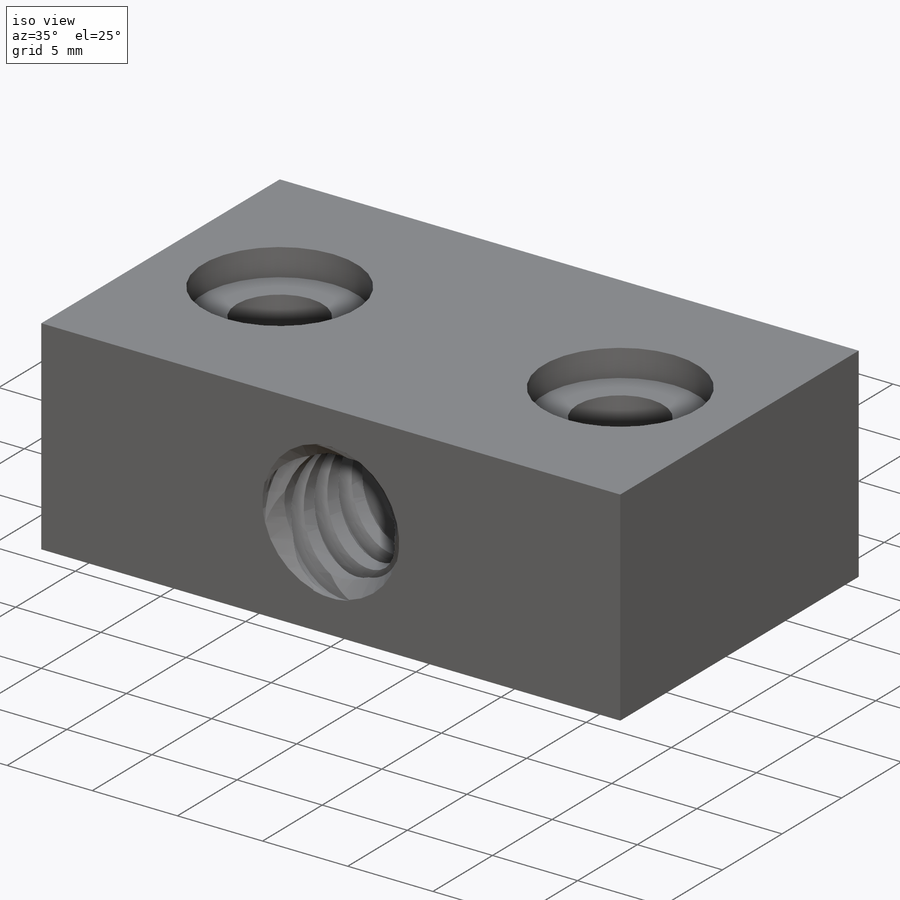
[diagram: iso view]
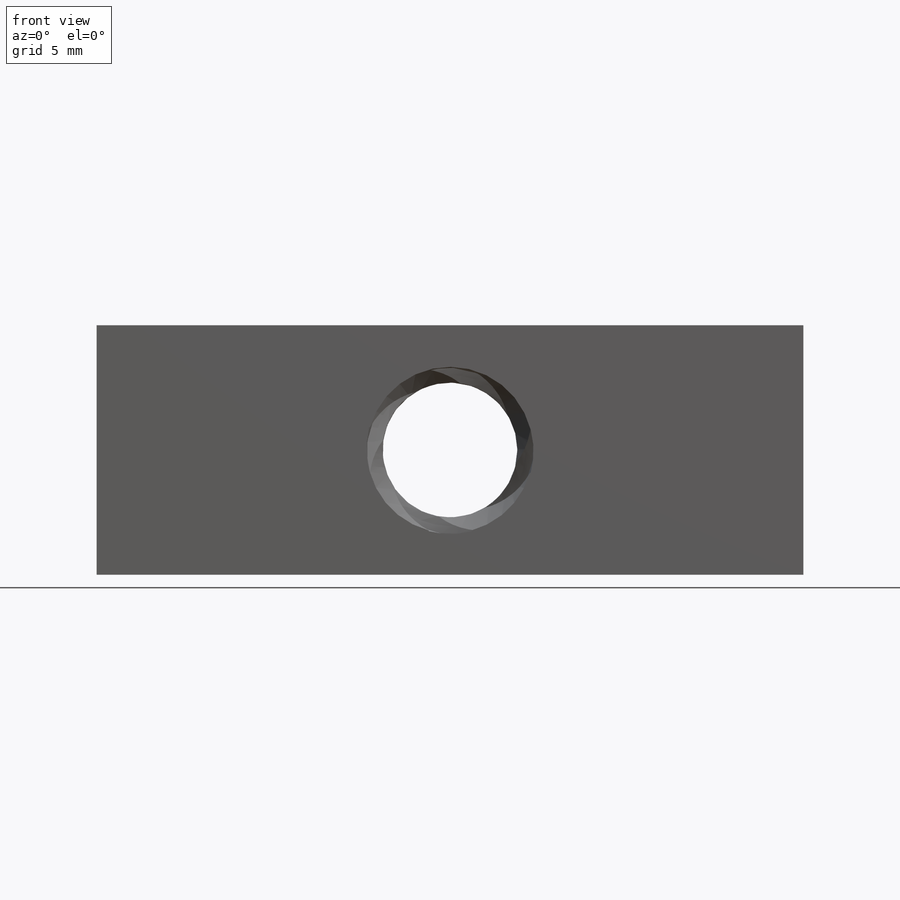
[diagram: front view]
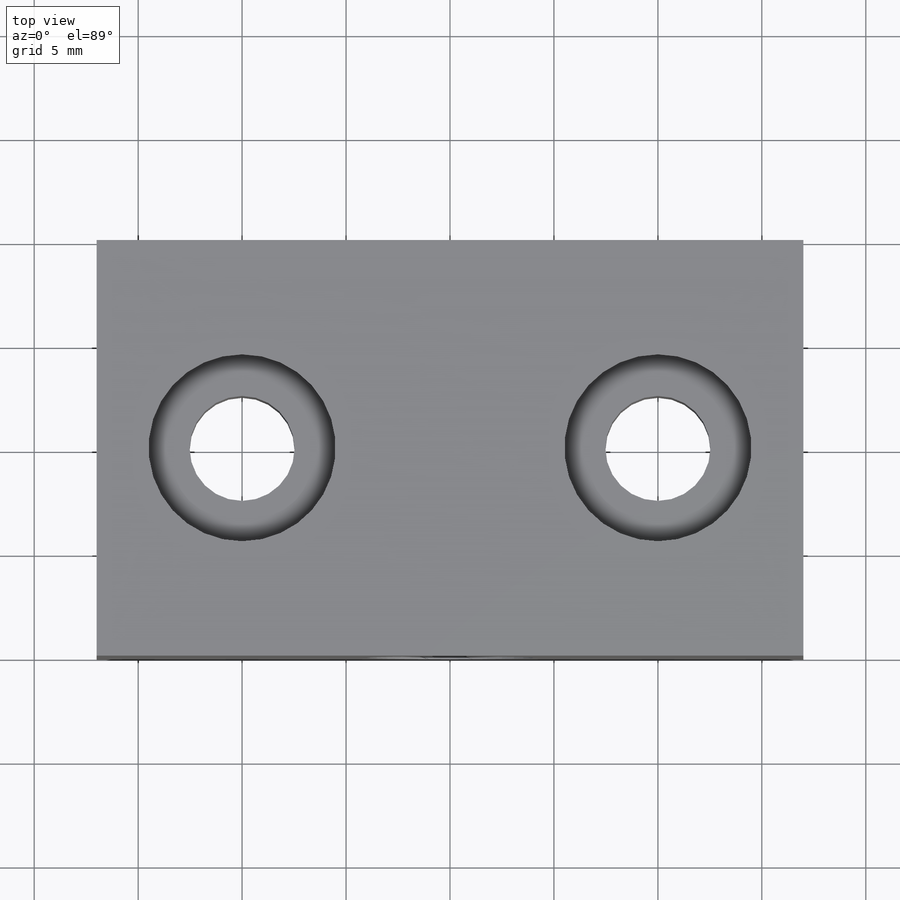
[diagram: top view]
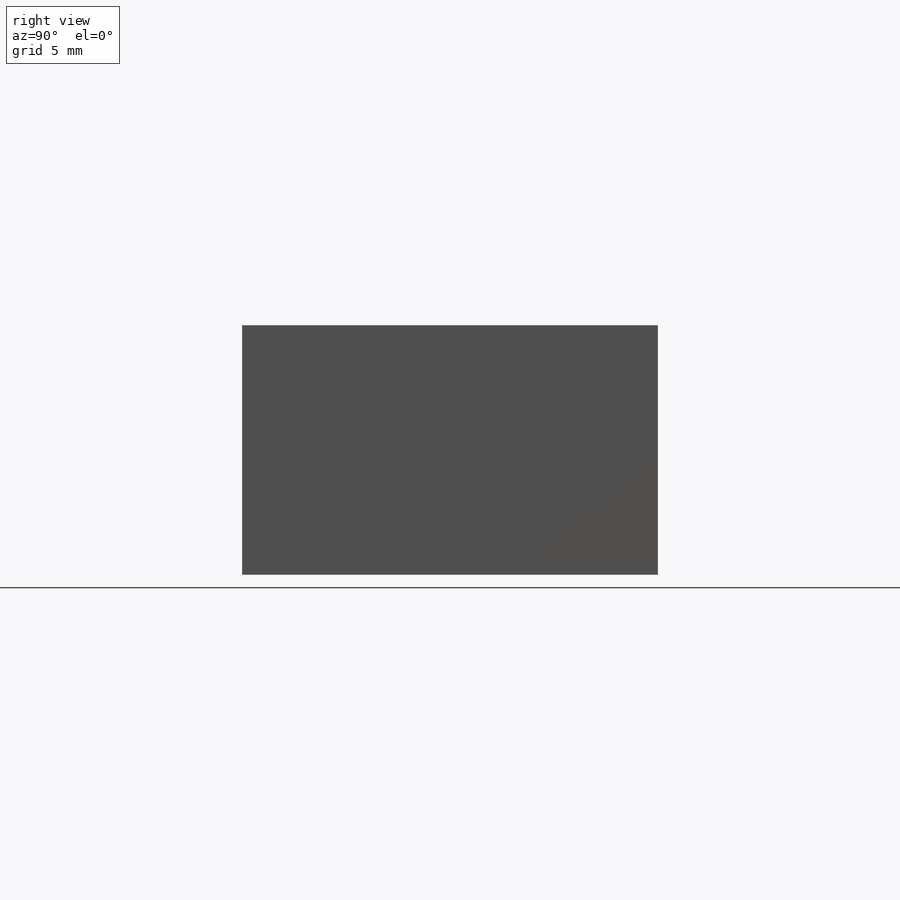
[diagram: right view]
SOLIDWORKS PART (.sldprt)
format: sldprt  version: not decoded by parser v0  size: 485,376 bytes
history: native  units: mm
features: sketch x8, cut_extrude x4, chamfer x2, material x1, extrude x1, plane x1, helix x1, sweep x1 (+12 scaffold rows collapsed)
feature tree (31):
  scaffold x12  (default folders/planes/origin — collapsed)
  material  "Material <not specified>"
  sketch  "Sketch1"  dims[D1=34.0mm D2=12.0mm]
  extrude  "Boss-Extrude1"  Depth=20mm
  sketch  "Sketch2"  dims[D1=6.5mm]
  cut_extrude  "Cut-Extrude1"  Depth=20mm
  sketch  "Sketch3"  dims[D1=5.05mm D2=7.0mm D3=20.0mm]
  cut_extrude  "Cut-Extrude2"  Depth=20mm
  sketch  "Sketch4"  dims[D1=1.975mm D2=1.975mm]
  cut_extrude  "Cut-Extrude3"  Depth=1.6mm
  sketch  "Sketch5"  dims[D1=9.24mm D2=4.62mm]
  cut_extrude  "Cut-Extrude4"  Depth=4.97mm
  plane  "Plane1"  Offset=2mm
  sketch  "Sketch6"
  helix  "Helix/Spiral1"  Pitch=24mm
  chamfer  "Chamfer1"  Distance=0.75mm Angle=45deg
  chamfer  "Chamfer2"  Distance=0.75mm Angle=45deg
  sketch  "Sketch7"  dims[c1.D5=~3.262823mm c1.D1=1.2mm c1.D2=1.8mm c1.D3=1.15mm c1.D4=~0.551133mm c2.D4=75.0deg c2.D3=0.71mm c2.D5=1.15mm c2.D6=1.15mm c2.D7=1.8mm c2.D8=1.15mm c2.D9=1.8mm c2.D10=1.8mm c2.D11=1.15mm c3.D3=1.1mm c3.D12=0.55mm c3.D5=1.1mm c3.D13=1.15mm]
  sketch  "Sketch8"
  sweep  "Cut-Sweep1"
decode coverage: 14 of 17 modeling features carry decoded parameters
note: ~ marks probable driven/reference dimensions
note: suppression state not decoded; provenance and decode notes live in map.json
